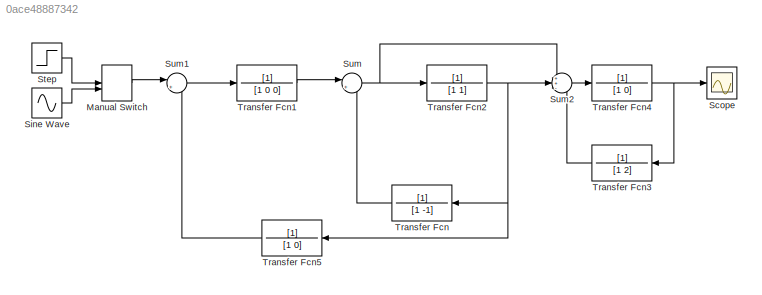
MODEL slx_0ace48887342
KIND model
CONFIG AbsTol = auto
CONFIG EnableMultiTasking = off
CONFIG FixedStep = 0.5
CONFIG MaxStep = 0.5
CONFIG MinStep = auto
CONFIG RelTol = 1e-9
CONFIG SampleTimeConstraint = Unconstrained
CONFIG SolverName = FixedStepAuto
CONFIG StartTime = 0.0
CONFIG StopTime = 10.0
BLOCK [ManualSwitch] Manual Switch
  CurrentSetting = 0
BLOCK [Scope] Scope
  Floating = off
  NumInputPorts = 1
  ScopeSpecificationString = Simulink.scopes.TimeScopeBlockCfg('CurrentConfiguration', extmgr.ConfigurationSet(extmgr.Configuration('Core','General UI',true),extmgr.Configuration('Core','Source UI',true),extmgr.Configuration('Sources','WiredSimulink',true),extmgr.Configuration('Visuals','Time Domain',true,'SerializedDisplays',{struct('MinYLimReal','-78.7253','MaxYLimReal','11.30067','YLabelReal','','MinYLimMag','0.00000','Max...<+1365ch>
BLOCK [Sin] Sine Wave
  SampleTime = 0
BLOCK [Step] Step
  SampleTime = 0
BLOCK [Sum] Sum
  Inputs = |+-
BLOCK [Sum] Sum1
  Inputs = |+-
BLOCK [Sum] Sum2
  Inputs = ++-
BLOCK [TransferFcn] Transfer Fcn
  Denominator = [1 -1]
  NameLocation = top
BLOCK [TransferFcn] Transfer Fcn1
  Denominator = [1 0 0]
BLOCK [TransferFcn] Transfer Fcn2
  Denominator = [1 1]
BLOCK [TransferFcn] Transfer Fcn3
  Denominator = [1 2]
  NameLocation = top
BLOCK [TransferFcn] Transfer Fcn4
  Denominator = [1 0]
BLOCK [TransferFcn] Transfer Fcn5
  Denominator = [1 0]
  NameLocation = top
LINE Manual Switch:1 -> Sum1:1
LINE Sine Wave:1 -> Manual Switch:2
LINE Step:1 -> Manual Switch:1
LINE Sum1:1 -> Transfer Fcn1:1
LINE Sum2:1 -> Transfer Fcn4:1
NET Sum:1 -> Sum2:1, Transfer Fcn2:1
LINE Transfer Fcn1:1 -> Sum:1
NET Transfer Fcn2:1 -> Sum2:2, Transfer Fcn5:1, Transfer Fcn:1
LINE Transfer Fcn3:1 -> Sum2:3
NET Transfer Fcn4:1 -> Scope:1, Transfer Fcn3:1
LINE Transfer Fcn5:1 -> Sum1:2
LINE Transfer Fcn:1 -> Sum:2
note: NET lines group one-source signal fan-out (src -> all destinations, sorted); 1:1 wires keep LINE
